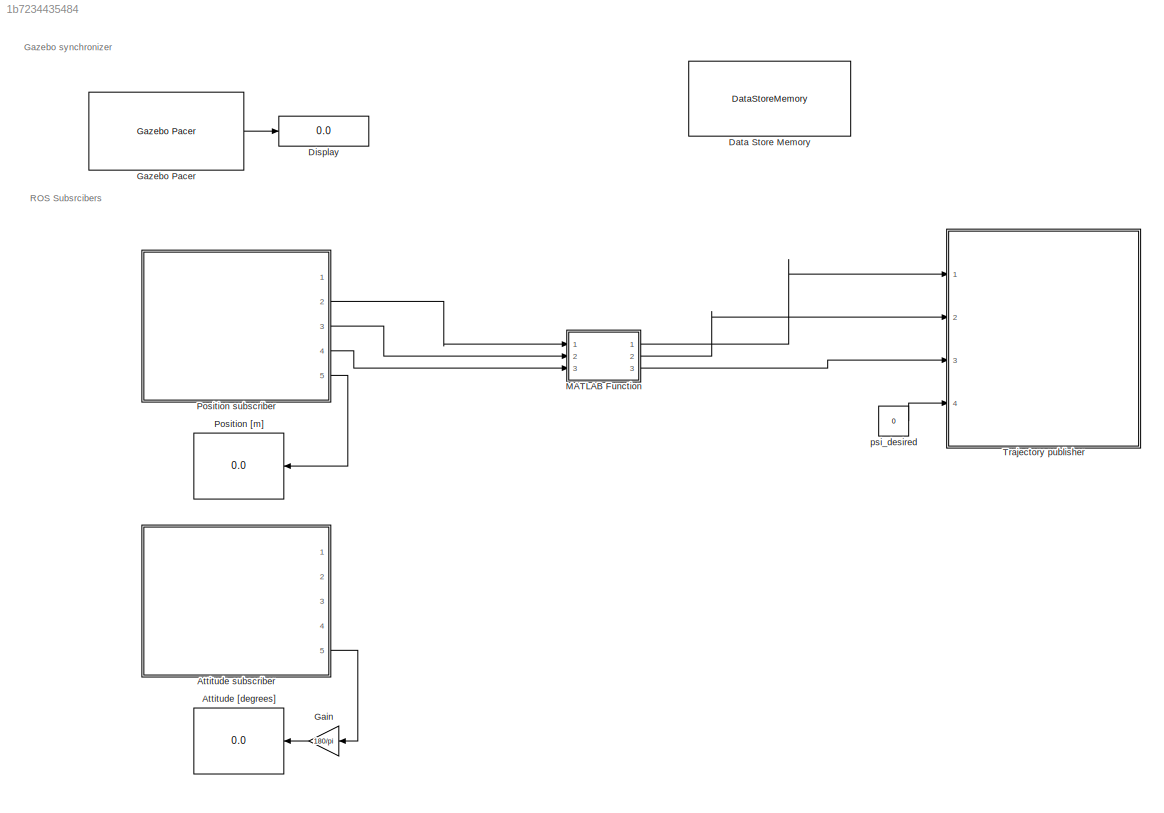
MODEL slx_1b7234435484
KIND model
CONFIG AbsTol = auto
CONFIG EnableMultiTasking = off
CONFIG FixedStep = FIXED_STEP_SIZE
CONFIG MaxStep = auto
CONFIG MinStep = auto
CONFIG RelTol = 1e-3
CONFIG SampleTimeConstraint = Unconstrained
CONFIG Solver = FixedStepAuto
CONFIG SolverName = FixedStepAuto
CONFIG StartTime = 0.0
CONFIG StopTime = Inf
BLOCK [Display] Attitude [degrees]
  Decimation = 1
  Ports = [1]
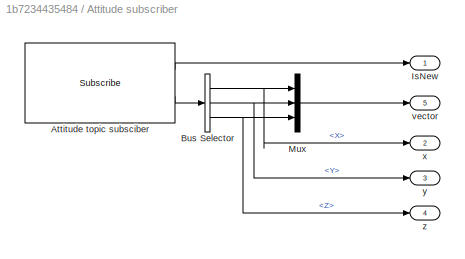
BLOCK [SubSystem] Attitude subscriber
  Ports = [0, 5]
  RequestExecContextInheritance = off
BLOCK [Reference] Attitude subscriber/Attitude topic subsciber  REF=robotlib/Subscribe
  Ports = [0, 2]
  SourceBlock = robotlib/Subscribe
  SourceProductBaseCode = RR
  SourceProductName = ROS Toolbox
  SourceType = ROS Subscribe
BLOCK [BusSelector] Attitude subscriber/Bus Selector
  OutputAsBus = off
  OutputSignals = X,Y,Z
  Ports = [1, 3]
BLOCK [Outport] Attitude subscriber/IsNew
  IconDisplay = Port number
BLOCK [Mux] Attitude subscriber/Mux
  DisplayOption = bar
  Inputs = 3
  Ports = [3, 1]
BLOCK [Outport] Attitude subscriber/vector
  IconDisplay = Port number
  Port = 5
BLOCK [Outport] Attitude subscriber/x
  IconDisplay = Port number
  Port = 2
BLOCK [Outport] Attitude subscriber/y
  IconDisplay = Port number
  Port = 3
BLOCK [Outport] Attitude subscriber/z
  IconDisplay = Port number
  Port = 4
BLOCK [DataStoreMemory] Data Store Memory
  DataStoreName = COUNTER
  InitialValue = 1
  OutDataTypeStr = double
  ReadBeforeWriteMsg = warning
  ShowAdditionalParam = off
  SignalType = real
  WriteAfterReadMsg = warning
  WriteAfterWriteMsg = warning
BLOCK [Display] Display
  Decimation = 1
  Ports = [1]
BLOCK [Gain] Gain
  Gain = 180/pi
  OutDataTypeStr = Inherit: Inherit via internal rule
  ParamDataTypeStr = Inherit: Inherit via internal rule
  SaturateOnIntegerOverflow = off
BLOCK [Reference] Gazebo Pacer  REF=robotgazebolib/Gazebo Pacer
  Ports = [0, 1]
  SourceBlock = robotgazebolib/Gazebo Pacer
  SourceProductBaseCode = RO
  SourceProductName = Robotics System Toolbox
  SourceType = Gazebo Pacer
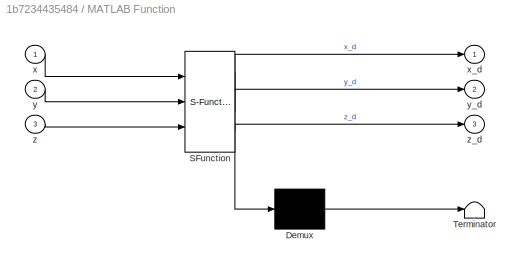
BLOCK [SubSystem] MATLAB Function
  ErrorFcn = Stateflow.Translate.translate
  PermitHierarchicalResolution = ExplicitOnly
  Ports = [3, 3]
  RequestExecContextInheritance = off
  SFBlockType = MATLAB Function
  TreatAsAtomicUnit = on
BLOCK [Demux] MATLAB Function/ Demux 
  Outputs = 1
  Ports = [1, 1]
BLOCK [S-Function] MATLAB Function/ SFunction 
  EnableBusSupport = on
  FunctionName = sf_sfun
  PortCounts = [3 4]
  Ports = [3, 4]
  SFcnIsStateOwnerBlock = off
  SFunctionDeploymentMode = off
  Tag = Stateflow S-Function 2
BLOCK [Terminator] MATLAB Function/ Terminator 
BLOCK [Inport] MATLAB Function/x
  IconDisplay = Port number
BLOCK [Outport] MATLAB Function/x_d
  IconDisplay = Port number
BLOCK [Inport] MATLAB Function/y
  IconDisplay = Port number
  Port = 2
BLOCK [Outport] MATLAB Function/y_d
  IconDisplay = Port number
  Port = 2
BLOCK [Inport] MATLAB Function/z
  IconDisplay = Port number
  Port = 3
BLOCK [Outport] MATLAB Function/z_d
  IconDisplay = Port number
  Port = 3
BLOCK [Display] Position [m]
  Decimation = 1
  Ports = [1]
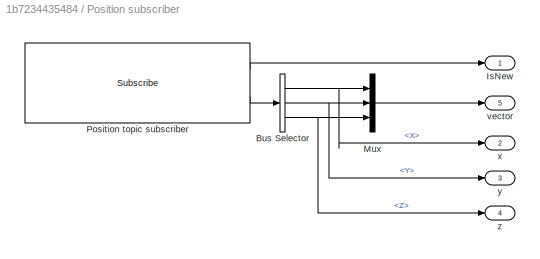
BLOCK [SubSystem] Position subscriber
  Ports = [0, 5]
  RequestExecContextInheritance = off
BLOCK [BusSelector] Position subscriber/Bus Selector
  OutputAsBus = off
  OutputSignals = Point.X,Point.Y,Point.Z
  Ports = [1, 3]
BLOCK [Outport] Position subscriber/IsNew
  IconDisplay = Port number
BLOCK [Mux] Position subscriber/Mux
  DisplayOption = bar
  Inputs = 3
  Ports = [3, 1]
BLOCK [Reference] Position subscriber/Position topic subscriber  REF=robotlib/Subscribe
  Ports = [0, 2]
  SourceBlock = robotlib/Subscribe
  SourceProductBaseCode = RR
  SourceProductName = ROS Toolbox
  SourceType = ROS Subscribe
BLOCK [Outport] Position subscriber/vector
  IconDisplay = Port number
  Port = 5
BLOCK [Outport] Position subscriber/x
  IconDisplay = Port number
  Port = 2
BLOCK [Outport] Position subscriber/y
  IconDisplay = Port number
  Port = 3
BLOCK [Outport] Position subscriber/z
  IconDisplay = Port number
  Port = 4
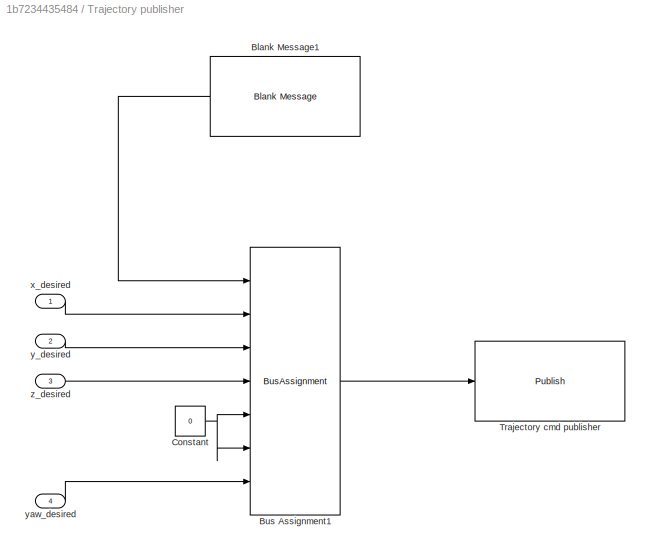
BLOCK [SubSystem] Trajectory publisher
  Ports = [4]
  RequestExecContextInheritance = off
BLOCK [Reference] Trajectory publisher/Blank Message1  REF=robotlib/Blank Message
  Ports = [0, 1]
  SourceBlock = robotlib/Blank Message
  SourceProductBaseCode = RR
  SourceProductName = ROS Toolbox
  SourceType = ROS Blank Message
BLOCK [BusAssignment] Trajectory publisher/Bus Assignment1
  AssignedSignals = Linear.X,Linear.Y,Linear.Z,Angular.X,Angular.Y,Angular.Z
  Ports = [7, 1]
BLOCK [Constant] Trajectory publisher/Constant
  Value = 0
BLOCK [Reference] Trajectory publisher/Trajectory cmd publisher  REF=robotlib/Publish
  Ports = [1]
  SourceBlock = robotlib/Publish
  SourceProductBaseCode = RR
  SourceProductName = ROS Toolbox
  SourceType = ROS Publish
BLOCK [Inport] Trajectory publisher/x_desired
  IconDisplay = Port number
BLOCK [Inport] Trajectory publisher/y_desired
  IconDisplay = Port number
  Port = 2
BLOCK [Inport] Trajectory publisher/yaw_desired
  IconDisplay = Port number
  Port = 4
BLOCK [Inport] Trajectory publisher/z_desired
  IconDisplay = Port number
  Port = 3
BLOCK [Constant] psi_desired
  Value = 0
ANNOTATION (root): Gazebo synchronizer
ANNOTATION (root): ROS Subsrcibers
LINE Attitude subscriber/Attitude topic subsciber:1 -> Attitude subscriber/IsNew:1
LINE Attitude subscriber/Attitude topic subsciber:2 -> Attitude subscriber/Bus Selector:1
NET Attitude subscriber/Bus Selector:1 -> Attitude subscriber/Mux:1, Attitude subscriber/x:1
NET Attitude subscriber/Bus Selector:2 -> Attitude subscriber/Mux:2, Attitude subscriber/y:1
NET Attitude subscriber/Bus Selector:3 -> Attitude subscriber/Mux:3, Attitude subscriber/z:1
LINE Attitude subscriber/Mux:1 -> Attitude subscriber/vector:1
LINE Attitude subscriber:5 -> Gain:1
LINE Gain:1 -> Attitude [degrees]:1
LINE Gazebo Pacer:1 -> Display:1
LINE MATLAB Function:1 -> Trajectory publisher:1
LINE MATLAB Function:2 -> Trajectory publisher:2
LINE MATLAB Function:3 -> Trajectory publisher:3
NET Position subscriber/Bus Selector:1 -> Position subscriber/Mux:1, Position subscriber/x:1
NET Position subscriber/Bus Selector:2 -> Position subscriber/Mux:2, Position subscriber/y:1
NET Position subscriber/Bus Selector:3 -> Position subscriber/Mux:3, Position subscriber/z:1
LINE Position subscriber/Mux:1 -> Position subscriber/vector:1
LINE Position subscriber/Position topic subscriber:1 -> Position subscriber/IsNew:1
LINE Position subscriber/Position topic subscriber:2 -> Position subscriber/Bus Selector:1
LINE Position subscriber:2 -> MATLAB Function:1
LINE Position subscriber:3 -> MATLAB Function:2
LINE Position subscriber:4 -> MATLAB Function:3
LINE Position subscriber:5 -> Position [m]:1
LINE Trajectory publisher/Blank Message1:1 -> Trajectory publisher/Bus Assignment1:1
LINE Trajectory publisher/Bus Assignment1:1 -> Trajectory publisher/Trajectory cmd publisher:1
NET Trajectory publisher/Constant:1 -> Trajectory publisher/Bus Assignment1:5, Trajectory publisher/Bus Assignment1:6
LINE Trajectory publisher/x_desired:1 -> Trajectory publisher/Bus Assignment1:2
LINE Trajectory publisher/y_desired:1 -> Trajectory publisher/Bus Assignment1:3
LINE Trajectory publisher/yaw_desired:1 -> Trajectory publisher/Bus Assignment1:7
LINE Trajectory publisher/z_desired:1 -> Trajectory publisher/Bus Assignment1:4
LINE psi_desired:1 -> Trajectory publisher:4
note: NET lines group one-source signal fan-out (src -> all destinations, sorted); 1:1 wires keep LINE
CHART MATLAB Function states=1 transitions=1
  STATE_LABEL 'eML_blk_kernel()'
  STATE_LABEL 'SCRIPT:\nfunction [x_d,y_d,z_d] = fcn(x, y, z)\n% define route\nroute = [0,0,1;\n    3,0,2;\n    -1,2,1;\n    1,-2,1];\n% if there is no input, set u to be [0, 0, 0]\nglobal COUNTER;\nx_d = 0;\ny_d = 0;\nz_d = 0;\nu = [x,y,z];\nif isempty(u)\n    u = [0,0,0];\n    COUNTER = 1;\nend\ndist = norm(route(COUNTER, :)-u);\ndisp(route(COUNTER, :));\nif dist<=0.1\n    COUNTER = COUNTER+1;\nend\nif COUNTER>=4\n    COUNTER = 4;\ne...<+82ch>'
